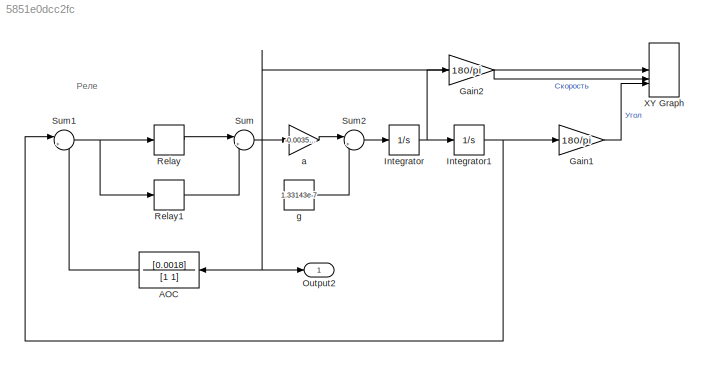
MODEL slx_5851e0dcc2fc
KIND model
CONFIG AbsTol = 1e-10
CONFIG EnableMultiTasking = off
CONFIG FixedStep = auto
CONFIG MaxStep = 1e-3
CONFIG MinStep = auto
CONFIG RelTol = 1e-9
CONFIG SampleTimeConstraint = Unconstrained
CONFIG SolverName = VariableStepAuto
CONFIG StartTime = 0.0
CONFIG StopTime = 600
BLOCK [TransferFcn] AOC
  Denominator = [1 1]
  NameLocation = top
  Numerator = [0.0018]
BLOCK [Gain] Gain1
  Gain = 180/pi
BLOCK [Gain] Gain2
  Gain = 180/pi
BLOCK [Integrator] Integrator
  InitialCondition = 0.00048093
BLOCK [Integrator] Integrator1
  InitialCondition = 0.0017593
BLOCK [Outport] Output2
BLOCK [Relay] Relay
  OffSwitchValue = 0.0017593-0.000351870594507
  OnSwitchValue = 0.0017593
BLOCK [Relay] Relay1
  OffOutputValue = -1
  OffSwitchValue = -0.0017593
  OnOutputValue = 0
  OnSwitchValue = -0.0017593 + 0.000351870594507
BLOCK [Sum] Sum
  Inputs = |++
BLOCK [Sum] Sum1
  Inputs = |+-
BLOCK [Sum] Sum2
  Inputs = |++
BLOCK [Record] XY Graph
  CompatibilityTag = XY
  FileSettingsInternal = {"entries":[{"content":{"excelSettings":{"content":{},"type":"Streamout.ExcelSettings"}},"type":"Streamout.FileSettingStorage","uuid":""}],"packageUris":["http:\/\/schema.mathworks.com\/mf0\/streamout_blocks\/R2020a"],"version":"1.0"}
  Layout = [1 1]
  SignalsInternal = {"entries":[{"content":{"signals":[{"content":{"blockPath":[],"dimensions":[1],"domain":"","lineColor":"#a2142f","plots":[ 1 ],"port":1,"sid":[""],"signalID":1,"signalName":"Sum"},"type":"RecordBlkView.Signal","uuid":""},{"content":{"blockPath":[],"dimensions":[1],"domain":"","lineColor":"#0072bd","lineWidth":20,"plots":[ 1 ],"port":2,"sid":[""],"signalID":2,"signalName":"Скорость"},"type":"Record...<+360ch>
  VisualizationBindings = {"xyplotplugin":{"info":[{"series":[{"bindingParametersList":[{"parameter":"X-Axis","signalID":1,"signalName":"Sum"},{"parameter":"Y-Axis","signalID":2,"signalName":"Скорость"}],"seriesID":0}],"subplotID":1}]}}
BLOCK [Gain] a
  Gain = -0.00350705
BLOCK [Constant] g
  Value = 1.33143e-7
ANNOTATION (root): Реле
LINE AOC:1 -> Sum1:2
LINE Gain1:1 -> XY Graph:3
LINE Gain2:1 -> XY Graph:2
NET Integrator1:1 -> Gain1:1, Sum1:1
NET Integrator:1 -> Gain2:1, Integrator1:1
LINE Relay1:1 -> Sum:2
LINE Relay:1 -> Sum:1
NET Sum1:1 -> Relay1:1, Relay:1
LINE Sum2:1 -> Integrator:1
NET Sum:1 -> AOC:1, Output2:1, XY Graph:1, a:1
LINE a:1 -> Sum2:1
LINE g:1 -> Sum2:2
note: NET lines group one-source signal fan-out (src -> all destinations, sorted); 1:1 wires keep LINE
